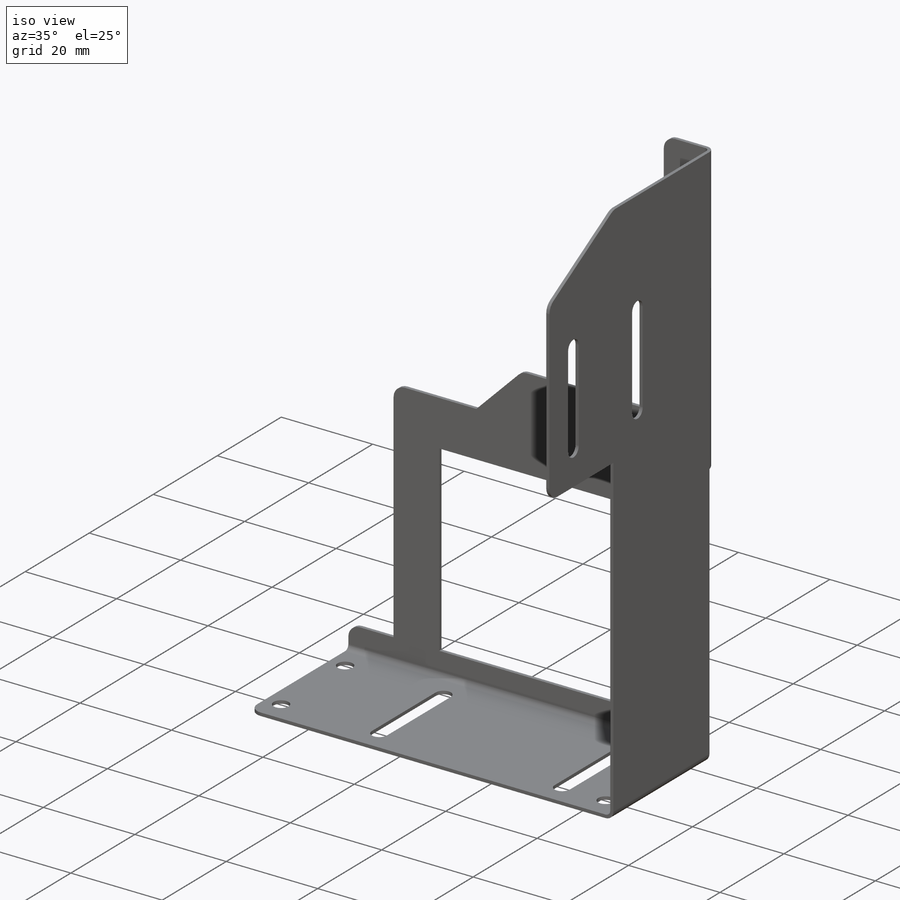
[diagram: iso view]
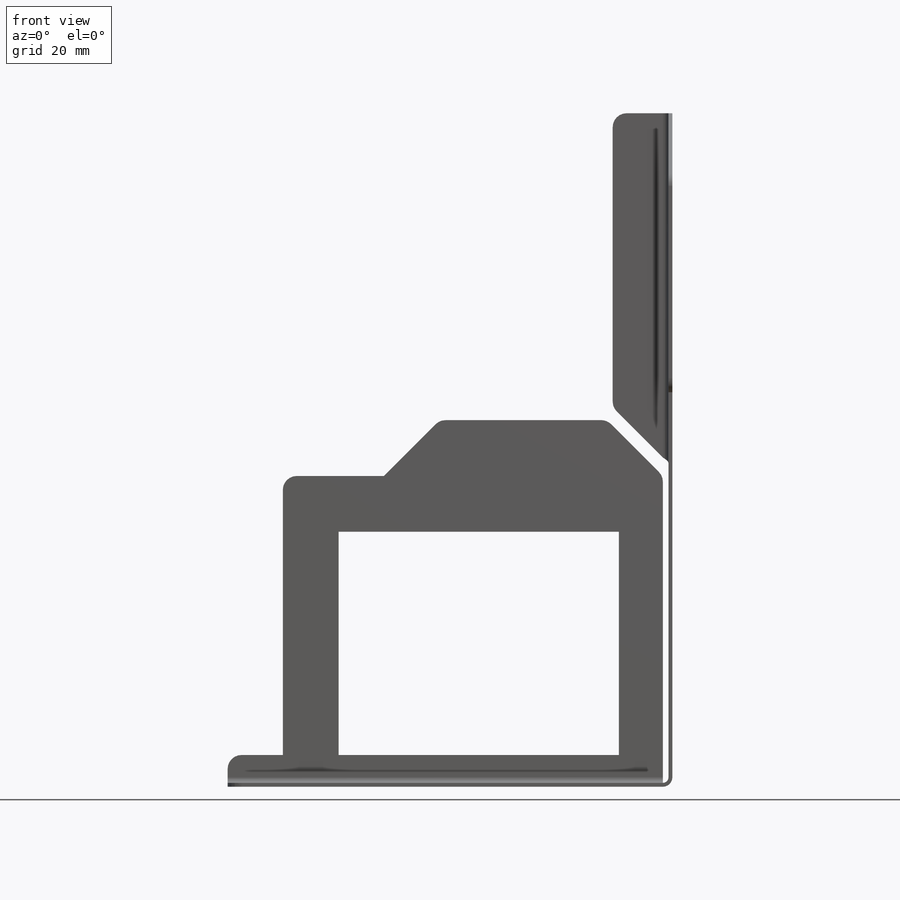
[diagram: front view]
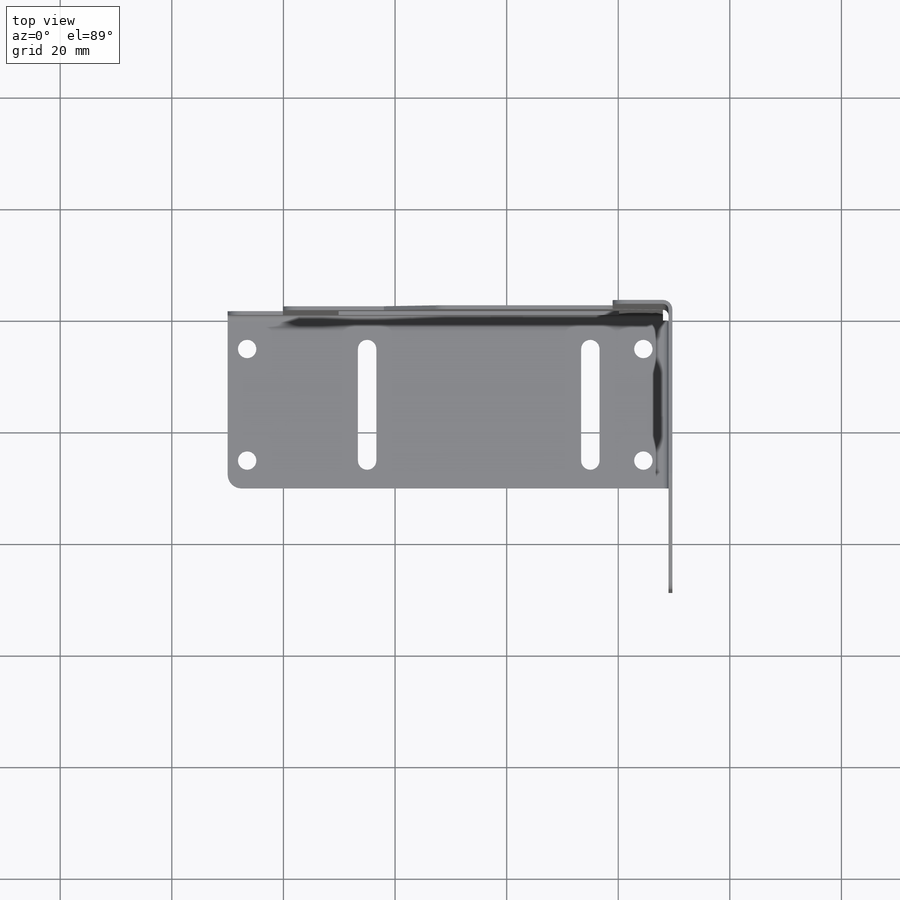
[diagram: top view]
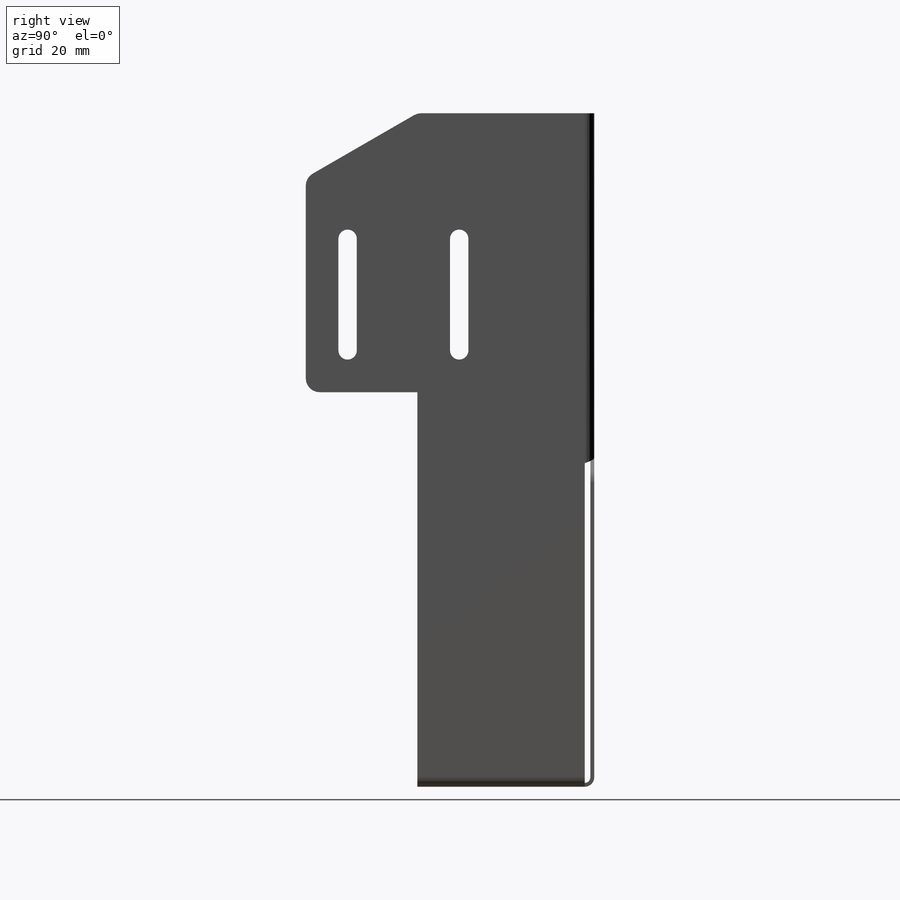
[diagram: right view]
SOLIDWORKS PART (.sldprt)
format: sldprt  version: not decoded by parser v0  size: 499,200 bytes
history: native  units: mm
features: sketch x13, sheet_metal_op x7, cut_extrude x4, material x1 + 5 further entries (+11 scaffold rows collapsed; 1 parser-record rows omitted)
feature tree (42):
  scaffold x11  (default folders/planes/origin — collapsed)
  material  "6061 Alloy"
  sketch  "Sketch1"  dims[c1.D1=60.0mm c1.D2=50.0mm c1.D3=50.0mm c1.D4=30.0mm c1.D5=10.0mm c1.D6=10.0mm c2.D3=60.0mm c2.D5=30.0mm c3.D3=78.0mm]
  sheet_metal_op  "Sheet-Metal1"
  sheet_metal_op  "Base-Flange1"
  sketch  "Sketch6"  dims[c1.D1=1.0mm c1.D2=~9.261939mm c2.D2=60.0deg c2.D3=10.0mm c2.D1=40.0mm c2.D4=50.0mm c2.D5=5.0mm c2.D6=2.5mm c2.D7=10.0mm c3.D7=45.0deg c3.D3=16.0mm c3.D4=5.0mm c3.D6=40.0mm c4.D7=44.0mm c4.D8=110.0mm c4.D2=10.0mm c5.D7=10.0mm c5.D8=20.0mm c5.D9=120.0mm c5.D10=~13.930172mm c6.D10=45.0deg c6.D11=10.0mm c6.D1=~10.235108mm c7.D1=45.0deg c7.D3=~15.646516mm c8.D3=45.0deg c9.D3=10.0mm c9.D8=50.0mm c9.D1=1.0mm c9.D4=90.0deg c9.D5=6.0 c10.D8=0.35mm c10.D9=0.35mm c10.D1=1.0mm c10.D2=500.0mm c10.D3=0.0mm c10.D6=10.0mm c10.D7=65.0mm]
  sheet_metal_op  "Edge-Flange2"
  sketch  "Sketch9"  dims[c1.D1=1.0mm c1.D4=90.0deg c1.D5=2.0 c1.D8=0.35mm c1.D9=0.35mm c2.D1=1.0mm c2.D2=500.0mm c2.D3=0.0mm c2.D6=10.0mm c2.D7=120.0mm]
  sheet_metal_op  "Edge-Flange3"
  sketch  "Sketch12"  dims[c1.D1=1.0mm c1.D2=~14.110441mm c2.D2=~45.128843deg c2.D3=10.0mm c2.D1=40.0mm c3.D2=~22.841501mm c4.D2=45.0deg c4.D1=1.0mm c4.D4=90.0deg c4.D5=3.0 c4.D8=0.35mm c4.D9=0.35mm c5.D1=1.0mm c5.D2=500.0mm c5.D3=0.0mm c5.D6=10.0mm c5.D7=10.0mm]
  sketch  "Sketch13"  dims[c1.D1=3.3mm c1.D2=40.0mm c1.D3=40.0mm c1.D4=20.0mm c1.D5=5.0mm c2.D3=25.0mm]
  cut_extrude  "Cut-Extrude1"  [1 undecoded]
  sketch  "Sketch14"  dims[D1=3.3mm D2=24.0mm D3=7.5mm D4=20.0mm]
  cut_extrude  "Cut-Extrude2"  [1 undecoded]
  sketch  "Sketch21"  dims[c1.D1=3.3mm c1.D2=5.0mm c1.D3=3.5mm c1.D4=93.0mm c2.D2=5.0mm]
  sheet_metal_op  "Edge-Flange4"
  sketch  "Sketch56"  dims[c1.D1=1.0mm c1.D4=90.0deg c1.D5=4.0 c1.D8=0.35mm c1.D9=0.35mm c2.D1=1.0mm c2.D2=500.0mm c2.D3=0.0mm c2.D6=10.0mm c2.D7=120.0mm]
  sheet_metal_op  "Edge-Flange5"
  sketch  "Sketch59"  dims[c1.D1=9.4mm c2.D1=45.0deg c2.D2=10.0mm c2.D3=2.5mm c3.D1=1.0mm c3.D4=90.0deg c3.D5=5.0 c3.D8=0.35mm c3.D9=0.35mm c4.D1=1.0mm c4.D2=500.0mm c4.D3=0.0mm c4.D6=10.0mm c4.D7=10.0mm]
  cut_extrude  "Cut-Extrude5"  [1 undecoded]
  sketch  "Sketch60"  dims[c1.D1=~11.037258mm c2.D1=60.0deg c2.D2=119.0mm c3.D2=90.0deg c3.D3=50.0mm c3.D4=20.0mm c4.D3=50.0mm]
  sheet_metal_op  "Tab1"
  sketch  "Sketch61"  dims[D1=3.3mm D2=20.0mm D3=20.0mm D4=7.5mm D5=7.5mm]
  cut_extrude  "Cut-Extrude6"  [1 undecoded]
  "Flat-Pattern1"
  sketch  "Bend-Lines1"
  sketch  "Bounding-Box1"
  "Flatten-<EdgeBend3>1"
  "Flatten-<EdgeBend4>1"
  "Flatten-<EdgeBend5>1"
  "Flatten-<EdgeBend6>1"
  parser-record x1  (decoder bookkeeping rows leaked as tree rows — omitted from the tree; the rows remain in map.json)
decode coverage: 11 of 24 modeling features carry decoded parameters; 5 rows unclassified (native names shown)
note: ~ marks probable driven/reference dimensions
note: 4 parameter values undecoded
summary: no parameter record found for 4 features
note: suppression state not decoded; provenance and decode notes live in map.json
